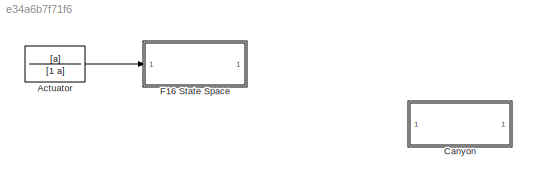
MODEL slx_e34a6b7f71f6
KIND model
CONFIG AbsTol = auto
CONFIG EnableMultiTasking = off
CONFIG FixedStep = auto
CONFIG MaxStep = auto
CONFIG MinStep = auto
CONFIG RelTol = 1e-3
CONFIG SampleTimeConstraint = Unconstrained
CONFIG Solver = VariableStepAuto
CONFIG SolverName = VariableStepAuto
CONFIG StartTime = 0.0
CONFIG StopTime = 10.0
BLOCK [TransferFcn] Actuator
  Denominator = [1 a]
  Numerator = [a]
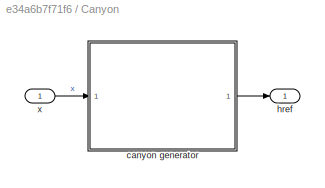
BLOCK [SubSystem] Canyon
  Ports = [1, 1]
  RequestExecContextInheritance = off
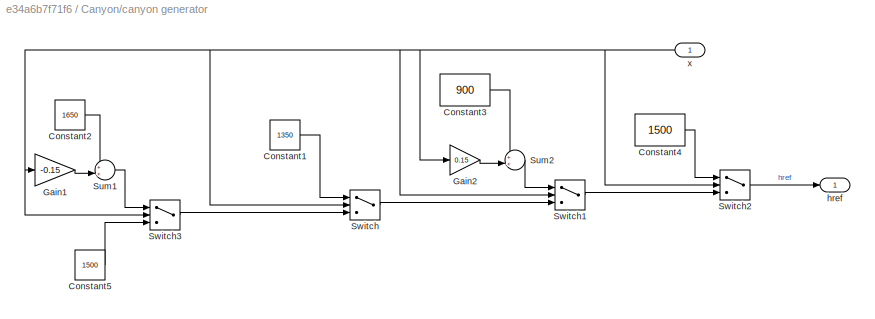
BLOCK [SubSystem] Canyon/canyon generator
  Ports = [1, 1]
  RequestExecContextInheritance = off
BLOCK [Constant] Canyon/canyon generator/Constant1
  Value = 1350
BLOCK [Constant] Canyon/canyon generator/Constant2
  Value = 1650
BLOCK [Constant] Canyon/canyon generator/Constant3
  Value = 900
BLOCK [Constant] Canyon/canyon generator/Constant4
  Value = 1500
BLOCK [Constant] Canyon/canyon generator/Constant5
  Value = 1500
BLOCK [Gain] Canyon/canyon generator/Gain1
  Gain = -0.15
  OutDataTypeStr = Inherit: Inherit via internal rule
  ParamDataTypeStr = Inherit: Inherit via internal rule
  SaturateOnIntegerOverflow = off
BLOCK [Gain] Canyon/canyon generator/Gain2
  Gain = 0.15
  OutDataTypeStr = Inherit: Inherit via internal rule
  ParamDataTypeStr = Inherit: Inherit via internal rule
  SaturateOnIntegerOverflow = off
BLOCK [Sum] Canyon/canyon generator/Sum1
  IconShape = round
  InputSameDT = off
  Inputs = ++|
  OutDataTypeStr = Inherit: Inherit via internal rule
  Ports = [2, 1]
  SaturateOnIntegerOverflow = off
BLOCK [Sum] Canyon/canyon generator/Sum2
  IconShape = round
  InputSameDT = off
  Inputs = ++|
  OutDataTypeStr = Inherit: Inherit via internal rule
  Ports = [2, 1]
  SaturateOnIntegerOverflow = off
BLOCK [Switch] Canyon/canyon generator/Switch
  InputSameDT = off
  SaturateOnIntegerOverflow = off
  Threshold = 2000
  ZeroCross = off
BLOCK [Switch] Canyon/canyon generator/Switch1
  InputSameDT = off
  SaturateOnIntegerOverflow = off
  Threshold = 3000
  ZeroCross = off
BLOCK [Switch] Canyon/canyon generator/Switch2
  InputSameDT = off
  SaturateOnIntegerOverflow = off
  Threshold = 4000
  ZeroCross = off
BLOCK [Switch] Canyon/canyon generator/Switch3
  InputSameDT = off
  SaturateOnIntegerOverflow = off
  Threshold = 1000
  ZeroCross = off
BLOCK [Outport] Canyon/canyon generator/href
  IconDisplay = Port number
BLOCK [Inport] Canyon/canyon generator/x
  IconDisplay = Port number
BLOCK [Outport] Canyon/href
  IconDisplay = Port number
BLOCK [Inport] Canyon/x
  IconDisplay = Port number
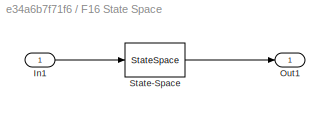
BLOCK [SubSystem] F16 State Space
  Ports = [1, 1]
  RequestExecContextInheritance = off
BLOCK [Inport] F16 State Space/In1
  IconDisplay = Port number
BLOCK [Outport] F16 State Space/Out1
  IconDisplay = Port number
BLOCK [StateSpace] F16 State Space/State-Space
  A = A_R
  B = B_R
  C = C_R
  D = D_R
  InitialCondition = 0
  Ports = [1, 1]
LINE Actuator:1 -> F16 State Space:1
LINE Canyon/canyon generator/Constant1:1 -> Canyon/canyon generator/Switch:1
LINE Canyon/canyon generator/Constant2:1 -> Canyon/canyon generator/Sum1:1
LINE Canyon/canyon generator/Constant3:1 -> Canyon/canyon generator/Sum2:1
LINE Canyon/canyon generator/Constant4:1 -> Canyon/canyon generator/Switch2:1
LINE Canyon/canyon generator/Constant5:1 -> Canyon/canyon generator/Switch3:3
LINE Canyon/canyon generator/Gain1:1 -> Canyon/canyon generator/Sum1:2
LINE Canyon/canyon generator/Gain2:1 -> Canyon/canyon generator/Sum2:2
LINE Canyon/canyon generator/Sum1:1 -> Canyon/canyon generator/Switch3:1
LINE Canyon/canyon generator/Sum2:1 -> Canyon/canyon generator/Switch1:1
LINE Canyon/canyon generator/Switch1:1 -> Canyon/canyon generator/Switch2:3
LINE Canyon/canyon generator/Switch2:1 -> Canyon/canyon generator/href:1
LINE Canyon/canyon generator/Switch3:1 -> Canyon/canyon generator/Switch:3
LINE Canyon/canyon generator/Switch:1 -> Canyon/canyon generator/Switch1:3
NET Canyon/canyon generator/x:1 -> Canyon/canyon generator/Gain1:1, Canyon/canyon generator/Gain2:1, Canyon/canyon generator/Switch1:2, Canyon/canyon generator/Switch2:2, Canyon/canyon generator/Switch3:2, Canyon/canyon generator/Switch:2
LINE Canyon/canyon generator:1 -> Canyon/href:1
LINE Canyon/x:1 -> Canyon/canyon generator:1
LINE F16 State Space/In1:1 -> F16 State Space/State-Space:1
LINE F16 State Space/State-Space:1 -> F16 State Space/Out1:1
note: NET lines group one-source signal fan-out (src -> all destinations, sorted); 1:1 wires keep LINE
